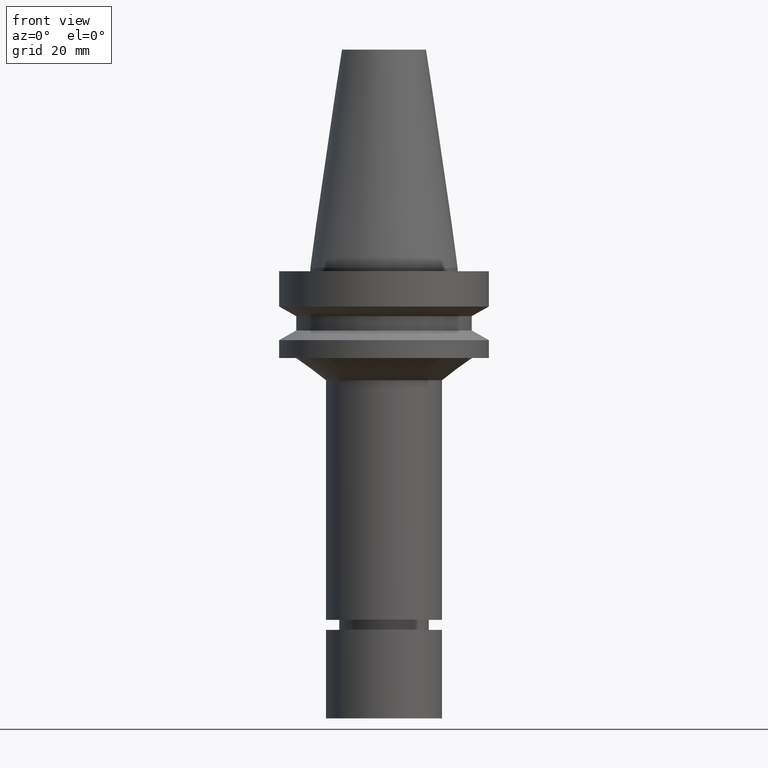
[diagram: clean part render]
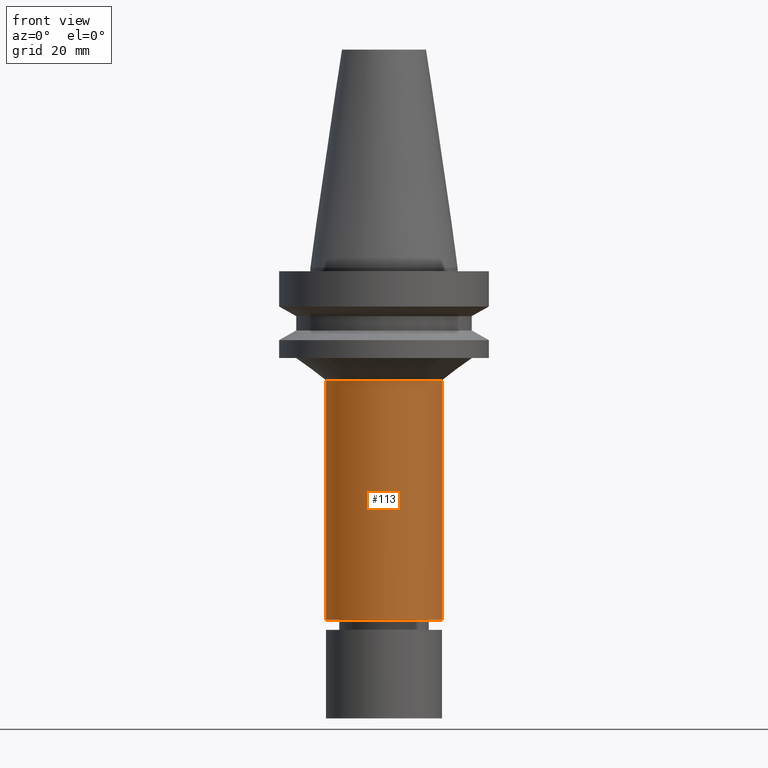
[diagram: same view with one face highlighted and labeled with its STEP entity id]
A machine part, front view. The second image highlights one B-rep face of the part: STEP entity #113.
In plain terms, the highlighted cylindrical surface (bore or boss wall) has radius 17.5 mm, axis along (0, -0, -1).
Its self-contained STEP definition (entity closure, byte-faithful):
#75=EDGE_CURVE('Unnamed[1]',#201,#201,#202,.T.);
#92=EDGE_CURVE('Unnamed[1]',#227,#227,#228,.T.);
#113=ADVANCED_FACE('Unnamed[1]',(#260,#261),#262,.T.);
#201=VERTEX_POINT('',#377);
#202=CIRCLE('',#378,17.4999999999998);
#227=VERTEX_POINT('',#410);
#228=CIRCLE('',#411,17.5000000000009);
#260=FACE_BOUND('',#451,.T.);
#261=FACE_BOUND('',#452,.T.);
#262=CYLINDRICAL_SURFACE('',#453,17.5000000000003);
#377=CARTESIAN_POINT('',(6.46001186550227E-015,17.4999999999999,-105.5));
#378=AXIS2_PLACEMENT_3D('',#580,#581,#582);
#410=CARTESIAN_POINT('',(2.0613647219023E-015,17.5000000000009,-33.6646406676194));
#411=AXIS2_PLACEMENT_3D('',#609,#610,#611);
#451=EDGE_LOOP('',(#646));
#452=EDGE_LOOP('',(#647));
#453=AXIS2_PLACEMENT_3D('',#648,#649,#650);
#580=CARTESIAN_POINT('',(6.46001186550227E-015,6.10434254362548E-014,-105.5));
#581=DIRECTION('',(6.12323399573676E-017,-9.38040710728317E-017,-1.0));
#582=DIRECTION('',(9.16690038541405E-034,1.0,-9.38040710728317E-017));
#609=CARTESIAN_POINT('',(2.0613647219023E-015,6.77818745886064E-014,-33.6646406676194));
#610=DIRECTION('',(6.12323399573677E-017,-9.3804071072826E-017,-1.0));
#611=DIRECTION('',(9.16690038551599E-034,1.0,-9.3804071072826E-017));
#646=ORIENTED_EDGE('',*,*,#75,.F.);
#647=ORIENTED_EDGE('',*,*,#92,.T.);
#648=CARTESIAN_POINT('',(4.26068829370228E-015,6.44126500124306E-014,-69.5823203338096));
#649=DIRECTION('',(6.12323399573676E-017,-9.38040710728289E-017,-1.0));
#650=DIRECTION('',(9.16690038541377E-034,1.0,-9.38040710728289E-017));